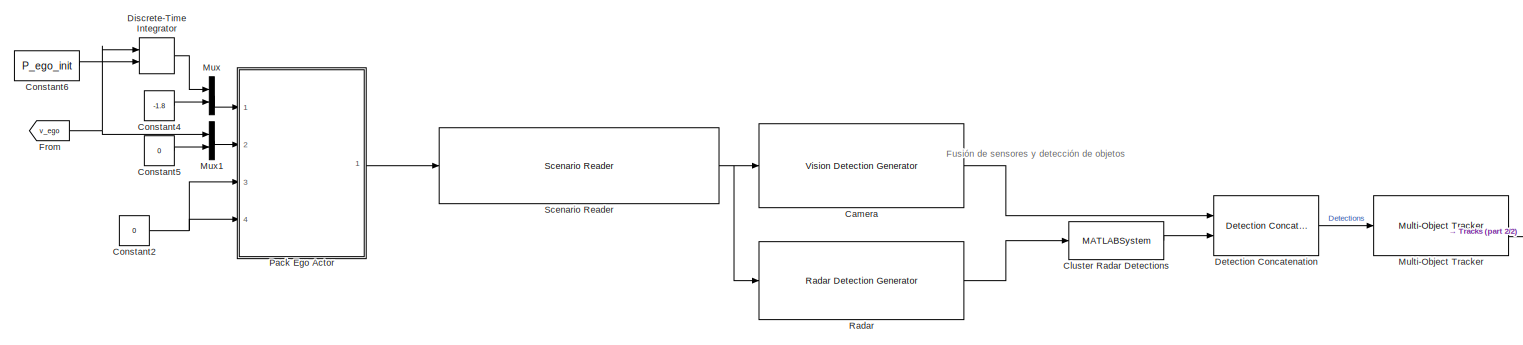
[diagram: root canvas - part 1/2, middle left region]
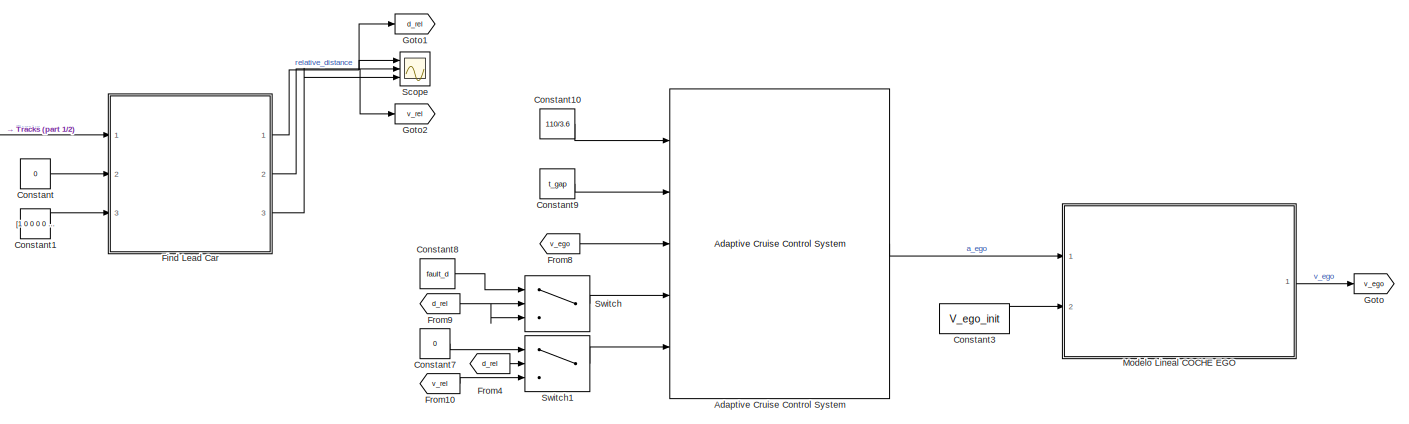
[diagram: root canvas - part 2/2, right side, full height]
MODEL slx_dd9172be6f51
KIND model
CONFIG AbsTol = auto
CONFIG EnableMultiTasking = off
CONFIG FixedStep = auto
CONFIG MaxStep = auto
CONFIG MinStep = auto
CONFIG RelTol = 1e-3
CONFIG SampleTimeConstraint = Unconstrained
CONFIG Solver = FixedStepDiscrete
CONFIG SolverName = FixedStepDiscrete
CONFIG StartTime = 0.0
CONFIG StopTime = 15
WORKSPACE source: mxarray member
WORKSPACE firstWarning = 1
WORKSPACE originalScenarioChecksum = '158070AB835E3E5B039703679FDCB6FF'
BLOCK [Reference] Adaptive Cruise Control System  REF=mpcadaslib/Adaptive Cruise Control System
  Ports = [5, 1]
  SourceBlock = mpcadaslib/Adaptive Cruise Control System
  SourceProductBaseCode = MP
  SourceProductName = Model Predictive Control Toolbox
  SourceType = Adaptive cruise control (ACC) system
BLOCK [Reference] Camera  REF=drivingscenarioandsensors/Vision Detection Generator
  Ports = [1, 1]
  SourceBlock = drivingscenarioandsensors/Vision Detection Generator
  SourceProductBaseCode = DR
  SourceProductName = Automated Driving Toolbox
  SourceType = visionDetectionGenerator
BLOCK [MATLABSystem] Cluster Radar Detections
  BusName = BusClusterDetections
  BusNameSource = Auto
  ClusterSize = 5
  MaskDisplay = disp(['Detection' char(10) 'Clustering']);\nport_label('input',1,'In');\nport_label('output',1,'Out');
  MaskType = helperClusterDetections
  Ports = [1, 1]
  SimulateUsing = Interpreted execution
  System = helperClusterDetections
BLOCK [Constant] Constant
  Value = 0
BLOCK [Constant] Constant1
  Value = [1 0 0 0 0 0; 0 0 1 0 0 0]
BLOCK [Constant] Constant10
  Value = 110/3.6
BLOCK [Constant] Constant2
  Value = 0
BLOCK [Constant] Constant3
  Value = V_ego_init
BLOCK [Constant] Constant4
  Value = -1.8
BLOCK [Constant] Constant5
  Value = 0
BLOCK [Constant] Constant6
  Value = P_ego_init
BLOCK [Constant] Constant7
  Value = 0
BLOCK [Constant] Constant8
  Value = fault_d
BLOCK [Constant] Constant9
  Value = t_gap
BLOCK [Reference] Detection Concatenation  REF=drivinglib/Detection Concatenation
  Ports = [2, 1]
  SourceBlock = drivinglib/Detection Concatenation
  SourceProductBaseCode = DR
  SourceProductName = Automated Driving Toolbox
  SourceType = driving.internal.DetectionConcatenation
BLOCK [DiscreteIntegrator] Discrete-Time Integrator
  ICPrevOutput = DiscIntNeverNeededParam
  ICPrevScaledInput = DiscIntNeverNeededParam
  InitialCondition = 5
  InitialConditionSetting = Auto
  InitialConditionSource = external
  Ports = [2, 1]
  SampleTime = -1
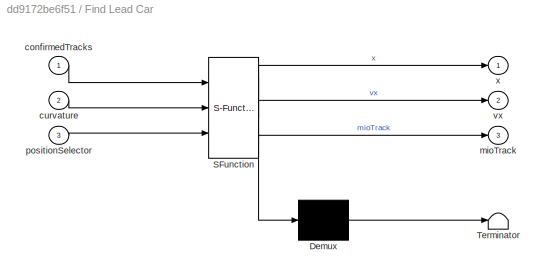
BLOCK [SubSystem] Find Lead Car
  ErrorFcn = Stateflow.Translate.translate
  PermitHierarchicalResolution = ExplicitOnly
  Ports = [3, 3]
  RequestExecContextInheritance = off
  SFBlockType = MATLAB Function
  TreatAsAtomicUnit = on
BLOCK [Demux] Find Lead Car/ Demux 
  Outputs = 1
  Ports = [1, 1]
BLOCK [S-Function] Find Lead Car/ SFunction 
  EnableBusSupport = on
  FunctionName = sf_sfun
  PortCounts = [3 4]
  Ports = [3, 4]
  SFcnIsStateOwnerBlock = off
  SFunctionDeploymentMode = off
  Tag = Stateflow S-Function 1
BLOCK [Terminator] Find Lead Car/ Terminator 
BLOCK [Inport] Find Lead Car/confirmedTracks
  IconDisplay = Port number
BLOCK [Inport] Find Lead Car/curvature
  IconDisplay = Port number
  Port = 2
BLOCK [Outport] Find Lead Car/mioTrack
  IconDisplay = Port number
  Port = 3
  VectorParamsAs1DForOutWhenUnconnected = off
BLOCK [Inport] Find Lead Car/positionSelector
  IconDisplay = Port number
  Port = 3
BLOCK [Outport] Find Lead Car/vx
  IconDisplay = Port number
  Port = 2
  VectorParamsAs1DForOutWhenUnconnected = off
BLOCK [Outport] Find Lead Car/x
  IconDisplay = Port number
  VectorParamsAs1DForOutWhenUnconnected = off
BLOCK [From] From
  GotoTag = v_ego
  TagVisibility = global
BLOCK [From] From10
  GotoTag = v_rel
BLOCK [From] From4
  GotoTag = d_rel
BLOCK [From] From8
  GotoTag = v_ego
  TagVisibility = global
BLOCK [From] From9
  GotoTag = d_rel
BLOCK [Goto] Goto
  GotoTag = v_ego
  TagVisibility = global
BLOCK [Goto] Goto1
  GotoTag = d_rel
BLOCK [Goto] Goto2
  GotoTag = v_rel
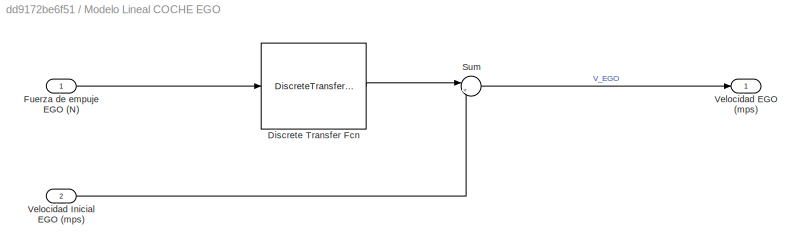
BLOCK [SubSystem] Modelo Lineal COCHE EGO
  Ports = [2, 1]
  RequestExecContextInheritance = off
BLOCK [DiscreteTransferFcn] Modelo Lineal COCHE EGO/Discrete Transfer Fcn
  Denominator = [1 -0.9988]
  InputPortMap = u0
  Numerator = [6.161e-5]
  Ports = [1, 1]
  SampleTime = 0.1
BLOCK [Inport] Modelo Lineal COCHE EGO/Fuerza de empuje EGO (N)
  IconDisplay = Port number
BLOCK [Sum] Modelo Lineal COCHE EGO/Sum
  IconShape = round
  InputSameDT = off
  Inputs = |++
  OutDataTypeStr = Inherit: Inherit via internal rule
  Ports = [2, 1]
  SaturateOnIntegerOverflow = off
BLOCK [Outport] Modelo Lineal COCHE EGO/Velocidad EGO (mps)
  IconDisplay = Port number
  VectorParamsAs1DForOutWhenUnconnected = off
BLOCK [Inport] Modelo Lineal COCHE EGO/Velocidad Inicial EGO (mps)
  IconDisplay = Port number
  Port = 2
BLOCK [Reference] Multi-Object Tracker  REF=drivinglib/Multi-Object Tracker
  Ports = [1, 1]
  SourceBlock = drivinglib/Multi-Object Tracker
  SourceProductBaseCode = DR
  SourceProductName = Automated Driving Toolbox
  SourceType = multiObjectTracker
BLOCK [Mux] Mux
  DisplayOption = bar
  Inputs = 2
  Ports = [2, 1]
BLOCK [Mux] Mux1
  DisplayOption = bar
  Inputs = 2
  Ports = [2, 1]
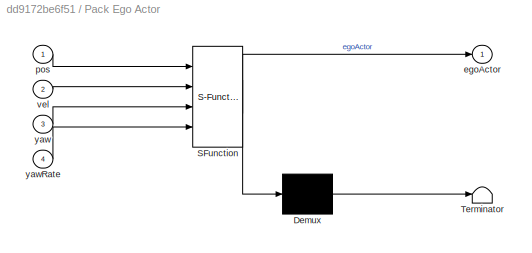
BLOCK [SubSystem] Pack Ego Actor
  ErrorFcn = Stateflow.Translate.translate
  PermitHierarchicalResolution = ExplicitOnly
  Ports = [4, 1]
  RequestExecContextInheritance = off
  SFBlockType = MATLAB Function
  TreatAsAtomicUnit = on
BLOCK [Demux] Pack Ego Actor/ Demux 
  Outputs = 1
  Ports = [1, 1]
BLOCK [S-Function] Pack Ego Actor/ SFunction 
  EnableBusSupport = on
  FunctionName = sf_sfun
  PortCounts = [4 2]
  Ports = [4, 2]
  SFcnIsStateOwnerBlock = off
  SFunctionDeploymentMode = off
  Tag = Stateflow S-Function 5
BLOCK [Terminator] Pack Ego Actor/ Terminator 
BLOCK [Outport] Pack Ego Actor/egoActor
  IconDisplay = Port number
  VectorParamsAs1DForOutWhenUnconnected = off
BLOCK [Inport] Pack Ego Actor/pos
  IconDisplay = Port number
BLOCK [Inport] Pack Ego Actor/vel
  IconDisplay = Port number
  Port = 2
BLOCK [Inport] Pack Ego Actor/yaw
  IconDisplay = Port number
  Port = 3
BLOCK [Inport] Pack Ego Actor/yawRate
  IconDisplay = Port number
  Port = 4
BLOCK [Reference] Radar  REF=drivingscenarioandsensors/Radar Detection Generator
  Ports = [1, 1]
  SourceBlock = drivingscenarioandsensors/Radar Detection Generator
  SourceProductBaseCode = DR
  SourceProductName = Automated Driving Toolbox
  SourceType = radarDetectionGenerator
BLOCK [Reference] Scenario Reader  REF=drivingscenarioandsensors/Scenario Reader
  Ports = [1, 1]
  SourceBlock = drivingscenarioandsensors/Scenario Reader
  SourceProductBaseCode = DR
  SourceProductName = Automated Driving Toolbox
  SourceType = driving.scenario.internal.ScenarioReader
BLOCK [Scope] Scope
  Floating = off
  NumInputPorts = 3
  Ports = [3]
  ScopeSpecificationString = Simulink.scopes.TimeScopeBlockCfg('CurrentConfiguration', extmgr.ConfigurationSet(extmgr.Configuration('Core','General UI',true),extmgr.Configuration('Core','Source UI',true),extmgr.Configuration('Sources','WiredSimulink',true),extmgr.Configuration('Visuals','Time Domain',true,'SerializedDisplays',{struct('MinYLimReal','16.08093','MaxYLimReal','72.73033','YLabelReal','','MinYLimMag','16.08093','Ma...<+2735ch>
BLOCK [Switch] Switch
  Criteria = u2 > Threshold
  InputSameDT = off
  SaturateOnIntegerOverflow = off
  Threshold = 200
BLOCK [Switch] Switch1
  Criteria = u2 > Threshold
  InputSameDT = off
  SaturateOnIntegerOverflow = off
  Threshold = 200
ANNOTATION (root): Fusión de sensores y detección de objetos
LINE Adaptive Cruise Control System:1 -> Modelo Lineal COCHE EGO:1
LINE Camera:1 -> Detection Concatenation:1
LINE Cluster Radar Detections:1 -> Detection Concatenation:2
LINE Constant10:1 -> Adaptive Cruise Control System:1
LINE Constant1:1 -> Find Lead Car:3
NET Constant2:1 -> Pack Ego Actor:3, Pack Ego Actor:4
LINE Constant3:1 -> Modelo Lineal COCHE EGO:2
LINE Constant4:1 -> Mux:2
LINE Constant5:1 -> Mux1:2
LINE Constant6:1 -> Discrete-Time Integrator:2
LINE Constant7:1 -> Switch1:1
LINE Constant8:1 -> Switch:1
LINE Constant9:1 -> Adaptive Cruise Control System:2
LINE Constant:1 -> Find Lead Car:2
LINE Detection Concatenation:1 -> Multi-Object Tracker:1
LINE Discrete-Time Integrator:1 -> Mux:1
NET Find Lead Car:1 -> Goto1:1, Scope:1
NET Find Lead Car:2 -> Goto2:1, Scope:2
LINE Find Lead Car:3 -> Scope:3
LINE From10:1 -> Switch1:3
LINE From4:1 -> Switch1:2
LINE From8:1 -> Adaptive Cruise Control System:3
NET From9:1 -> Switch:2, Switch:3
NET From:1 -> Discrete-Time Integrator:1, Mux1:1
LINE Modelo Lineal COCHE EGO/Discrete Transfer Fcn:1 -> Modelo Lineal COCHE EGO/Sum:1
LINE Modelo Lineal COCHE EGO/Fuerza de empuje EGO (N):1 -> Modelo Lineal COCHE EGO/Discrete Transfer Fcn:1
LINE Modelo Lineal COCHE EGO/Sum:1 -> Modelo Lineal COCHE EGO/Velocidad EGO (mps):1
LINE Modelo Lineal COCHE EGO/Velocidad Inicial EGO (mps):1 -> Modelo Lineal COCHE EGO/Sum:2
LINE Modelo Lineal COCHE EGO:1 -> Goto:1
LINE Multi-Object Tracker:1 -> Find Lead Car:1
LINE Mux1:1 -> Pack Ego Actor:2
LINE Mux:1 -> Pack Ego Actor:1
LINE Pack Ego Actor:1 -> Scenario Reader:1
LINE Radar:1 -> Cluster Radar Detections:1
NET Scenario Reader:1 -> Camera:1, Radar:1
LINE Switch1:1 -> Adaptive Cruise Control System:5
LINE Switch:1 -> Adaptive Cruise Control System:4
note: NET lines group one-source signal fan-out (src -> all destinations, sorted); 1:1 wires keep LINE
CHART Find Lead Car states=1 transitions=1
  STATE_LABEL 'eML_blk_kernel()'
  STATE_LABEL "SCRIPT:\nfunction [x,vx,mioTrack] = findLeadCar(confirmedTracks, curvature, positionSelector)\n% This function finds the lead car: a car in front of the ego car that\n% satisfies all the criteria below:\n% * Within the ego car's lane.\n% * In front of the ego car.\n% * Closest to the ego car.\n\n% Important notes:\n% 1. If you change state definition, change the following:\n%       State = [x;vx;y;vy;z;vz] ...<+1713ch>"
CHART Pack Ego Actor states=1 transitions=1
  STATE_LABEL 'eML_blk_kernel()'
  STATE_LABEL "SCRIPT:\nfunction egoActor = packEgo(pos,vel,yaw,yawRate)\n% Pack ego information into a single ego actor bus\n%\n% Imoprtant note:\n% Output is a bus of type BusActorsActors. This is the same bus used by the\n% Scenario Reader to output an individual actor. If you change the\n% output bus name of Scenario Reader, change the output bus name here\n% as well by clicking on 'Edit Data' in the menu above.\n\neg...<+215ch>"
